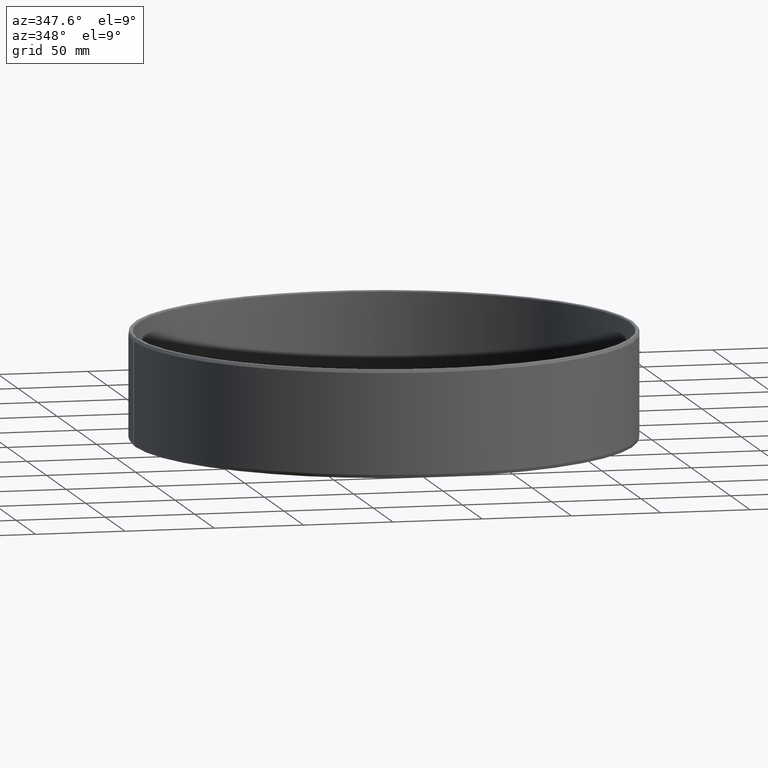
[diagram: clean part render]
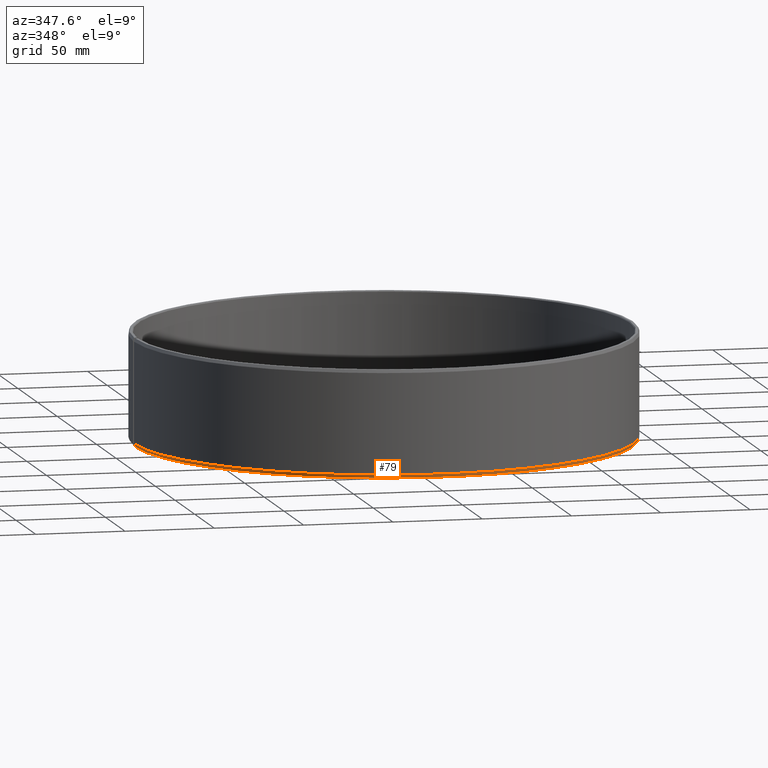
[diagram: same view with one face highlighted and labeled with its STEP entity id]
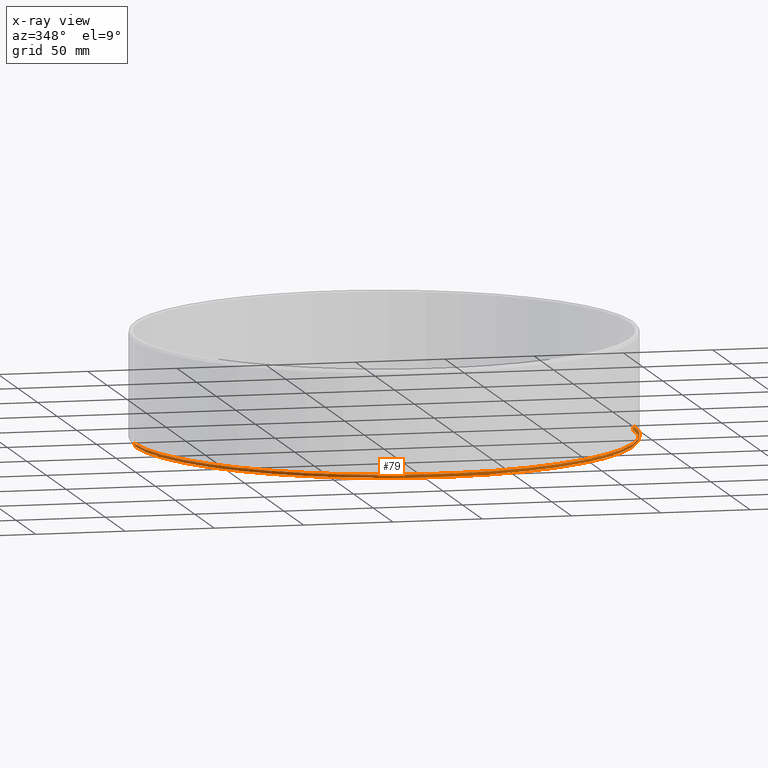
[diagram: x-ray of the same camera — body ghosted, the highlighted face saturated]
A machine part, auxiliary view. The second image highlights one B-rep face of the part: STEP entity #79.
The next image is the same camera in x-ray: the body ghosted, the highlighted face saturated — about 1% of this face is hidden behind the body in this view.
In plain terms, the highlighted conical surface has half-angle 20 deg.
Its self-contained STEP definition (entity closure, byte-faithful):
#79=ADVANCED_FACE('',(#100),#101,.T.);
#100=FACE_OUTER_BOUND('',#132,.T.);
#101=CONICAL_SURFACE('',#133,139.67242678916,0.349065850398864);
#132=EDGE_LOOP('',(#184,#185,#186,#187));
#133=AXIS2_PLACEMENT_3D('',#188,#189,#190);
#184=ORIENTED_EDGE('',*,*,#294,.F.);
#185=ORIENTED_EDGE('',*,*,#293,.F.);
#186=ORIENTED_EDGE('',*,*,#295,.F.);
#187=ORIENTED_EDGE('',*,*,#296,.T.);
#188=CARTESIAN_POINT('',(8.47140465882379E-016,-1.2527780583096E-015,0.900000000000009));
#189=DIRECTION('',(5.48707263966375E-016,-6.09939603923743E-016,1.0));
#190=DIRECTION('',(-1.0,1.89882151931499E-015,5.48707263966376E-016));
#293=EDGE_CURVE('',#341,#339,#343,.T.);
#294=EDGE_CURVE('',#339,#344,#345,.T.);
#295=EDGE_CURVE('',#346,#341,#347,.T.);
#296=EDGE_CURVE('',#346,#344,#348,.T.);
#339=VERTEX_POINT('',#407);
#341=VERTEX_POINT('',#410);
#343=CIRCLE('',#413,140.0);
#344=VERTEX_POINT('',#414);
#345=LINE('',#415,#416);
#346=VERTEX_POINT('',#417);
#347=LINE('',#418,#419);
#348=CIRCLE('',#420,139.344853578321);
#407=CARTESIAN_POINT('',(140.0,-2.84781791594002E-013,1.79999999999993));
#410=CARTESIAN_POINT('',(-140.0,2.64397654711188E-013,1.80000000000008));
#413=AXIS2_PLACEMENT_3D('',#487,#488,#489);
#414=CARTESIAN_POINT('',(139.344853578321,-2.82359661886324E-013,-5.72526750287405E-014));
#415=CARTESIAN_POINT('',(139.67242678916,-2.83570726740163E-013,0.899999999999932));
#416=VECTOR('',#490,1.0);
#417=CARTESIAN_POINT('',(-139.344853578321,2.64472381267695E-013,9.33906045100928E-014));
#418=CARTESIAN_POINT('',(-139.344853578321,2.64472381267695E-013,9.33906045100928E-014));
#419=VECTOR('',#491,10.0);
#420=AXIS2_PLACEMENT_3D('',#492,#493,#494);
#487=CARTESIAN_POINT('',(1.34097700345212E-015,-1.74661459587933E-015,1.80000000000001));
#488=DIRECTION('',(5.48707263966375E-016,-6.09939603923743E-016,1.0));
#489=DIRECTION('',(-1.0,1.89882151931499E-015,5.48707263966376E-016));
#490=DIRECTION('',(-0.342020143325667,1.26447634049496E-015,-0.939692620785909));
#491=DIRECTION('',(-0.342020143325666,1.33819041265143E-016,0.939692620785909));
#492=CARTESIAN_POINT('',(3.53303928312648E-016,-7.58941520739863E-016,1.91641236067366E-014));
#493=DIRECTION('',(5.48707263966375E-016,-6.09939603923743E-016,1.0));
#494=DIRECTION('',(-1.0,1.89882151931499E-015,5.48707263966376E-016));